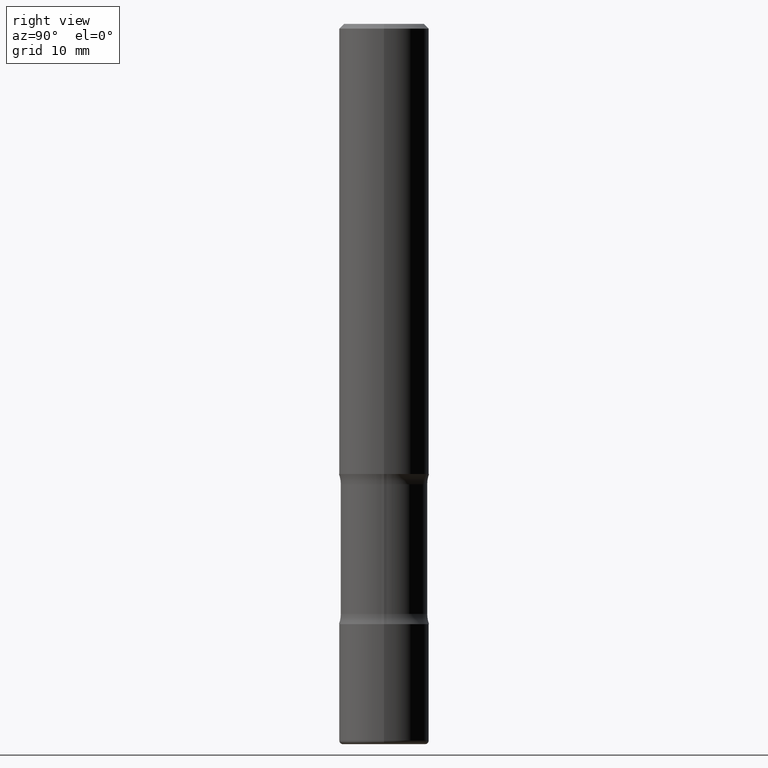
[diagram: clean part render]
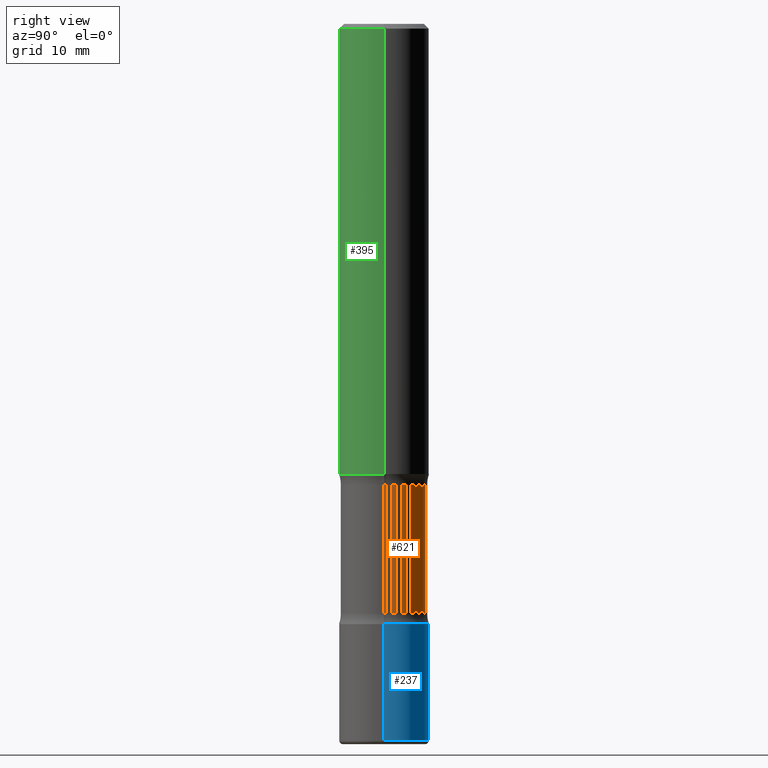
[diagram: same view with three faces highlighted in distinct colors, each labeled with its STEP entity id]
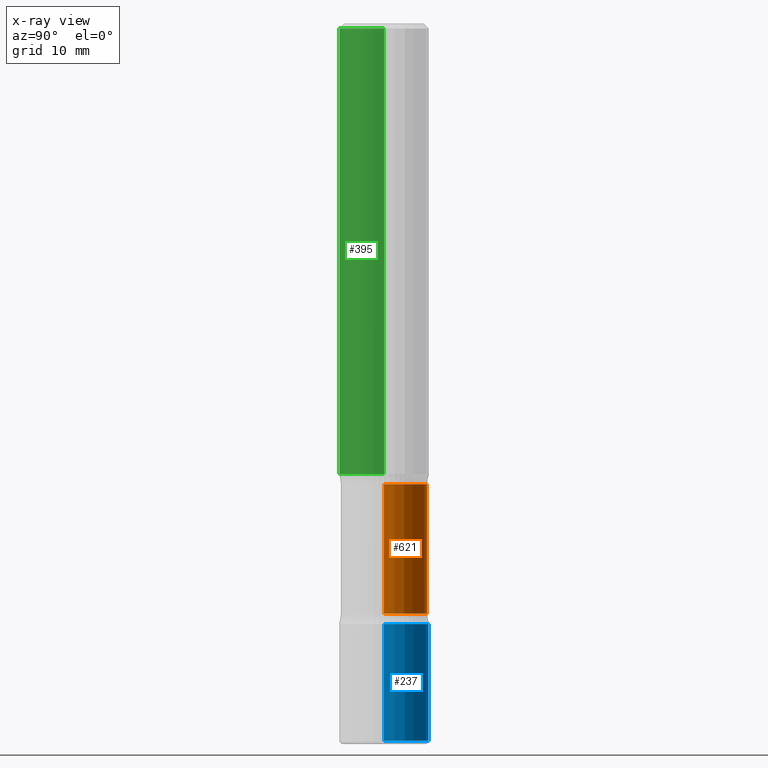
[diagram: x-ray of the same camera — body ghosted, the three highlighted faces saturated]
A machine part, right view with three faces highlighted in distinct colors.
The next image is the same camera in x-ray (body ghosted, the three faces saturated) — at least one of them is partly hidden behind the body in this view.
Their STEP definitions:

[orange] entity #621 — the highlighted cylindrical surface (partial cylindrical patch) has radius 4.572 mm, axis along (-0, 0, 1).
#14 = CARTESIAN_POINT ( 'NONE',  ( -0.1800000000000000488, -7.348630807762562010E-15, -2.457353194726920265 ) ) ;
#17 = EDGE_CURVE ( 'NONE', #686, #134, #622, .T. ) ;
#30 = DIRECTION ( 'NONE',  ( 1.000000000000000000, -6.982962677686269077E-15, 0.000000000000000000 ) ) ;
#37 = CARTESIAN_POINT ( 'NONE',  ( 0.1800000000000000211, -7.803460792314427030E-15, -1.875000000000000000 ) ) ;
#60 = DIRECTION ( 'NONE',  ( 1.000000000000000000, -6.982962677686266711E-15, 0.000000000000000000 ) ) ;
#69 = EDGE_CURVE ( 'NONE', #680, #134, #781, .T. ) ;
#97 = ORIENTED_EDGE ( 'NONE', *, *, #69, .T. ) ;
#115 = CARTESIAN_POINT ( 'NONE',  ( 4.585254011597131119E-29, -6.546527510330898707E-15, -1.875000000000000000 ) ) ;
#134 = VERTEX_POINT ( 'NONE', #354 ) ;
#143 = EDGE_LOOP ( 'NONE', ( #545, #97, #742, #668 ) ) ;
#210 = CARTESIAN_POINT ( 'NONE',  ( 4.689545443575900529E-29, -6.695428035103134465E-15, -1.917646805273080179 ) ) ;
#232 = CARTESIAN_POINT ( 'NONE',  ( -0.1800000000000000211, -5.267550585962718025E-15, -1.875000000000000000 ) ) ;
#286 = DIRECTION ( 'NONE',  ( -2.445468806185136877E-29, 3.491481338843145188E-15, 1.000000000000000000 ) ) ;
#293 = VECTOR ( 'NONE', #363, 39.37007874015748143 ) ;
#296 = DIRECTION ( 'NONE',  ( 1.000000000000000000, -6.982962677686267499E-15, 0.000000000000000000 ) ) ;
#302 = CYLINDRICAL_SURFACE ( 'NONE', #439, 0.1800000000000000211 ) ;
#354 = CARTESIAN_POINT ( 'NONE',  ( -0.1799999999999999933, -5.315355495757832321E-15, -1.917646805273080179 ) ) ;
#362 = FACE_OUTER_BOUND ( 'NONE', #143, .T. ) ;
#363 = DIRECTION ( 'NONE',  ( -2.445468806185136877E-29, 3.491481338843145188E-15, 1.000000000000000000 ) ) ;
#407 = CARTESIAN_POINT ( 'NONE',  ( 0.1800000000000000488, -9.836736104319155141E-15, -2.457353194726920265 ) ) ;
#439 = AXIS2_PLACEMENT_3D ( 'NONE', #115, #805, #296 ) ;
#474 = VERTEX_POINT ( 'NONE', #407 ) ;
#476 = EDGE_CURVE ( 'NONE', #474, #686, #593, .T. ) ;
#534 = EDGE_CURVE ( 'NONE', #474, #680, #741, .T. ) ;
#539 = DIRECTION ( 'NONE',  ( -2.445468806185136597E-29, 3.491481338843145583E-15, 1.000000000000000000 ) ) ;
#545 = ORIENTED_EDGE ( 'NONE', *, *, #534, .T. ) ;
#546 = CARTESIAN_POINT ( 'NONE',  ( 6.009380583484073203E-29, -8.579802822335626818E-15, -2.457353194726920265 ) ) ;
#566 = AXIS2_PLACEMENT_3D ( 'NONE', #210, #643, #30 ) ;
#569 = CARTESIAN_POINT ( 'NONE',  ( 0.1799999999999999933, -7.952361317086663578E-15, -1.917646805273080179 ) ) ;
#593 = LINE ( 'NONE', #37, #777 ) ;
#621 = ADVANCED_FACE ( 'NONE', ( #362 ), #302, .T. ) ;
#622 = CIRCLE ( 'NONE', #566, 0.1799999999999999933 ) ;
#643 = DIRECTION ( 'NONE',  ( -2.445468806185136597E-29, 3.491481338843145583E-15, 1.000000000000000000 ) ) ;
#666 = AXIS2_PLACEMENT_3D ( 'NONE', #546, #539, #60 ) ;
#668 = ORIENTED_EDGE ( 'NONE', *, *, #476, .F. ) ;
#680 = VERTEX_POINT ( 'NONE', #14 ) ;
#686 = VERTEX_POINT ( 'NONE', #569 ) ;
#741 = CIRCLE ( 'NONE', #666, 0.1800000000000000488 ) ;
#742 = ORIENTED_EDGE ( 'NONE', *, *, #17, .F. ) ;
#777 = VECTOR ( 'NONE', #286, 39.37007874015748143 ) ;
#781 = LINE ( 'NONE', #232, #293 ) ;
#805 = DIRECTION ( 'NONE',  ( -2.445468806185136597E-29, 3.491481338843145583E-15, 1.000000000000000000 ) ) ;

[blue] entity #237 — the highlighted cylindrical surface (partial cylindrical patch) has radius 4.7625 mm, axis along (-0, 0, 1).
#62 = CARTESIAN_POINT ( 'NONE',  ( 0.000000000000000000, 0.000000000000000000, 0.000000000000000000 ) ) ;
#67 = CYLINDRICAL_SURFACE ( 'NONE', #165, 0.1875000000000000555 ) ;
#85 = VERTEX_POINT ( 'NONE', #677 ) ;
#132 = FACE_OUTER_BOUND ( 'NONE', #785, .T. ) ;
#159 = DIRECTION ( 'NONE',  ( 1.000000000000000000, -6.982962677686266711E-15, 0.000000000000000000 ) ) ;
#165 = AXIS2_PLACEMENT_3D ( 'NONE', #62, #561, #432 ) ;
#176 = ORIENTED_EDGE ( 'NONE', *, *, #514, .T. ) ;
#177 = CIRCLE ( 'NONE', #678, 0.1875000000000000555 ) ;
#186 = EDGE_CURVE ( 'NONE', #804, #323, #298, .T. ) ;
#201 = ORIENTED_EDGE ( 'NONE', *, *, #370, .F. ) ;
#237 = ADVANCED_FACE ( 'NONE', ( #132 ), #67, .T. ) ;
#298 = LINE ( 'NONE', #488, #664 ) ;
#306 = VERTEX_POINT ( 'NONE', #331 ) ;
#319 = AXIS2_PLACEMENT_3D ( 'NONE', #773, #535, #159 ) ;
#323 = VERTEX_POINT ( 'NONE', #756 ) ;
#331 = CARTESIAN_POINT ( 'NONE',  ( -0.1875000000000001110, -9.089804166896598665E-15, -2.984999999999999876 ) ) ;
#332 = CIRCLE ( 'NONE', #319, 0.1875000000000000278 ) ;
#358 = CARTESIAN_POINT ( 'NONE',  ( -0.1875000000000000555, 1.332267629550188243E-15, -9.223003294227950793E-30 ) ) ;
#361 = EDGE_CURVE ( 'NONE', #804, #306, #177, .T. ) ;
#370 = EDGE_CURVE ( 'NONE', #323, #85, #332, .T. ) ;
#391 = ORIENTED_EDGE ( 'NONE', *, *, #186, .F. ) ;
#404 = DIRECTION ( 'NONE',  ( -2.445468806185136597E-29, 3.491481338843145583E-15, 1.000000000000000000 ) ) ;
#432 = DIRECTION ( 'NONE',  ( 1.000000000000000000, -6.982962677686265922E-15, 4.876176775795935793E-29 ) ) ;
#444 = ORIENTED_EDGE ( 'NONE', *, *, #361, .T. ) ;
#488 = CARTESIAN_POINT ( 'NONE',  ( 0.1875000000000000555, -1.309305502066175205E-15, 9.142831454617382414E-30 ) ) ;
#514 = EDGE_CURVE ( 'NONE', #306, #85, #543, .T. ) ;
#535 = DIRECTION ( 'NONE',  ( -2.445468806185136597E-29, 3.491481338843145583E-15, 1.000000000000000000 ) ) ;
#537 = CARTESIAN_POINT ( 'NONE',  ( 7.299724386462632472E-29, -1.042207179644678967E-14, -2.984999999999999876 ) ) ;
#543 = LINE ( 'NONE', #358, #554 ) ;
#554 = VECTOR ( 'NONE', #735, 39.37007874015748143 ) ;
#561 = DIRECTION ( 'NONE',  ( -2.445468806185136597E-29, 3.491481338843145583E-15, 1.000000000000000000 ) ) ;
#633 = CARTESIAN_POINT ( 'NONE',  ( 0.1875000000000001110, -1.173137729851296468E-14, -2.984999999999999876 ) ) ;
#655 = DIRECTION ( 'NONE',  ( 1.000000000000000000, -6.982962677686270655E-15, 0.000000000000000000 ) ) ;
#664 = VECTOR ( 'NONE', #685, 39.37007874015748143 ) ;
#677 = CARTESIAN_POINT ( 'NONE',  ( -0.1875000000000000278, -8.243119942227138668E-15, -2.500000000000000000 ) ) ;
#678 = AXIS2_PLACEMENT_3D ( 'NONE', #537, #404, #655 ) ;
#685 = DIRECTION ( 'NONE',  ( -2.445468806185136877E-29, 3.491481338843145188E-15, 1.000000000000000000 ) ) ;
#735 = DIRECTION ( 'NONE',  ( -2.445468806185136877E-29, 3.491481338843145188E-15, 1.000000000000000000 ) ) ;
#756 = CARTESIAN_POINT ( 'NONE',  ( 0.1875000000000000278, -1.003800884917403995E-14, -2.500000000000000000 ) ) ;
#773 = CARTESIAN_POINT ( 'NONE',  ( 6.113672015462842613E-29, -8.728703347107864943E-15, -2.500000000000000000 ) ) ;
#785 = EDGE_LOOP ( 'NONE', ( #444, #176, #201, #391 ) ) ;
#804 = VERTEX_POINT ( 'NONE', #633 ) ;

[green] entity #395 — the highlighted cylindrical surface (partial cylindrical patch) has radius 4.7625 mm, axis along (-0, 0, 1).
#6 = DIRECTION ( 'NONE',  ( -2.445468806185136597E-29, 3.491481338843145583E-15, 1.000000000000000000 ) ) ;
#24 = DIRECTION ( 'NONE',  ( -2.445468806185136877E-29, 3.491481338843145188E-15, 1.000000000000000000 ) ) ;
#34 = CIRCLE ( 'NONE', #75, 0.1875000000000000278 ) ;
#51 = DIRECTION ( 'NONE',  ( -2.445468806185136597E-29, 3.491481338843145583E-15, 1.000000000000000000 ) ) ;
#53 = EDGE_CURVE ( 'NONE', #238, #587, #150, .T. ) ;
#75 = AXIS2_PLACEMENT_3D ( 'NONE', #631, #6, #258 ) ;
#139 = EDGE_LOOP ( 'NONE', ( #283, #170, #571, #596 ) ) ;
#150 = LINE ( 'NONE', #405, #368 ) ;
#170 = ORIENTED_EDGE ( 'NONE', *, *, #322, .T. ) ;
#188 = DIRECTION ( 'NONE',  ( 1.000000000000000000, -6.982962677686265133E-15, 0.000000000000000000 ) ) ;
#216 = FACE_OUTER_BOUND ( 'NONE', #139, .T. ) ;
#238 = VERTEX_POINT ( 'NONE', #384 ) ;
#258 = DIRECTION ( 'NONE',  ( 1.000000000000000000, -6.982962677686266711E-15, 0.000000000000000000 ) ) ;
#275 = DIRECTION ( 'NONE',  ( 1.000000000000000000, -6.982962677686265922E-15, 4.876176775795935793E-29 ) ) ;
#283 = ORIENTED_EDGE ( 'NONE', *, *, #364, .F. ) ;
#289 = LINE ( 'NONE', #526, #690 ) ;
#307 = AXIS2_PLACEMENT_3D ( 'NONE', #793, #51, #188 ) ;
#308 = CARTESIAN_POINT ( 'NONE',  ( 0.1874999999999997780, -1.356173001359023691E-15, -0.02000000000000003858 ) ) ;
#322 = EDGE_CURVE ( 'NONE', #520, #238, #34, .T. ) ;
#339 = DIRECTION ( 'NONE',  ( -2.445468806185136597E-29, 3.491481338843145583E-15, 1.000000000000000000 ) ) ;
#364 = EDGE_CURVE ( 'NONE', #520, #486, #289, .T. ) ;
#368 = VECTOR ( 'NONE', #591, 39.37007874015748143 ) ;
#381 = AXIS2_PLACEMENT_3D ( 'NONE', #717, #339, #275 ) ;
#384 = CARTESIAN_POINT ( 'NONE',  ( 0.1875000000000000278, -7.855833012397073715E-15, -1.875000000000000000 ) ) ;
#395 = ADVANCED_FACE ( 'NONE', ( #216 ), #589, .T. ) ;
#405 = CARTESIAN_POINT ( 'NONE',  ( 0.1874999999999999167, -1.309305502066174219E-15, 9.142831454617375408E-30 ) ) ;
#486 = VERTEX_POINT ( 'NONE', #728 ) ;
#520 = VERTEX_POINT ( 'NONE', #684 ) ;
#526 = CARTESIAN_POINT ( 'NONE',  ( -0.1874999999999999167, 1.332267629550187257E-15, -9.223003294227943787E-30 ) ) ;
#571 = ORIENTED_EDGE ( 'NONE', *, *, #53, .T. ) ;
#587 = VERTEX_POINT ( 'NONE', #308 ) ;
#589 = CYLINDRICAL_SURFACE ( 'NONE', #381, 0.1874999999999999167 ) ;
#591 = DIRECTION ( 'NONE',  ( -2.445468806185136877E-29, 3.491481338843145188E-15, 1.000000000000000000 ) ) ;
#596 = ORIENTED_EDGE ( 'NONE', *, *, #610, .F. ) ;
#610 = EDGE_CURVE ( 'NONE', #486, #587, #753, .T. ) ;
#631 = CARTESIAN_POINT ( 'NONE',  ( 4.585254011597131119E-29, -6.546527510330898707E-15, -1.875000000000000000 ) ) ;
#684 = CARTESIAN_POINT ( 'NONE',  ( -0.1874999999999999722, -1.975910939003691182E-15, -1.875000000000000000 ) ) ;
#690 = VECTOR ( 'NONE', #24, 39.37007874015748143 ) ;
#717 = CARTESIAN_POINT ( 'NONE',  ( 0.000000000000000000, 0.000000000000000000, 0.000000000000000000 ) ) ;
#728 = CARTESIAN_POINT ( 'NONE',  ( -0.1874999999999997780, 1.239475875289310330E-15, -0.02000000000000003858 ) ) ;
#753 = CIRCLE ( 'NONE', #307, 0.1874999999999997780 ) ;
#793 = CARTESIAN_POINT ( 'NONE',  ( 4.890937612370282792E-31, -6.982962677686303935E-17, -0.02000000000000003858 ) ) ;